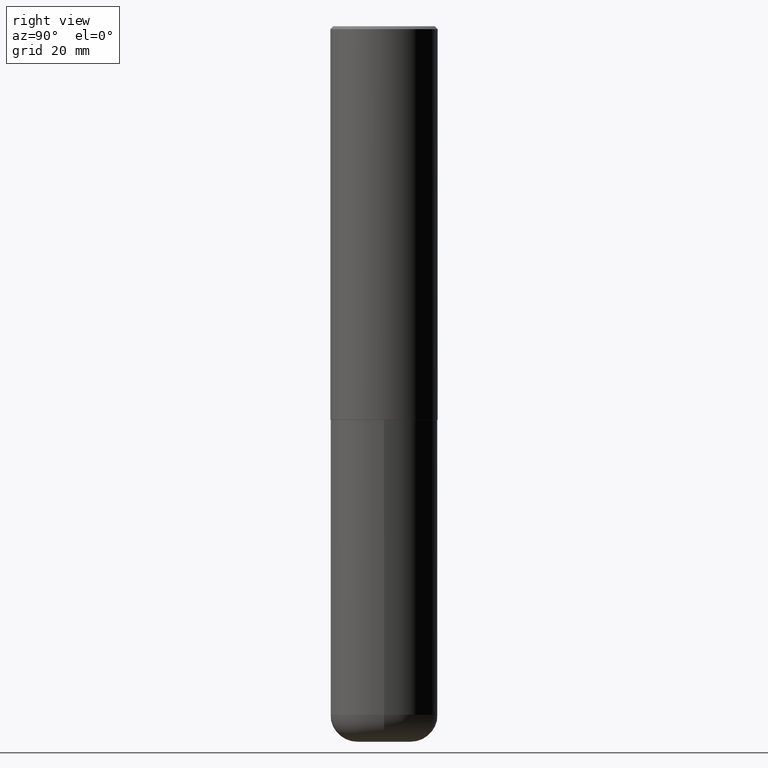
[diagram: clean part render]
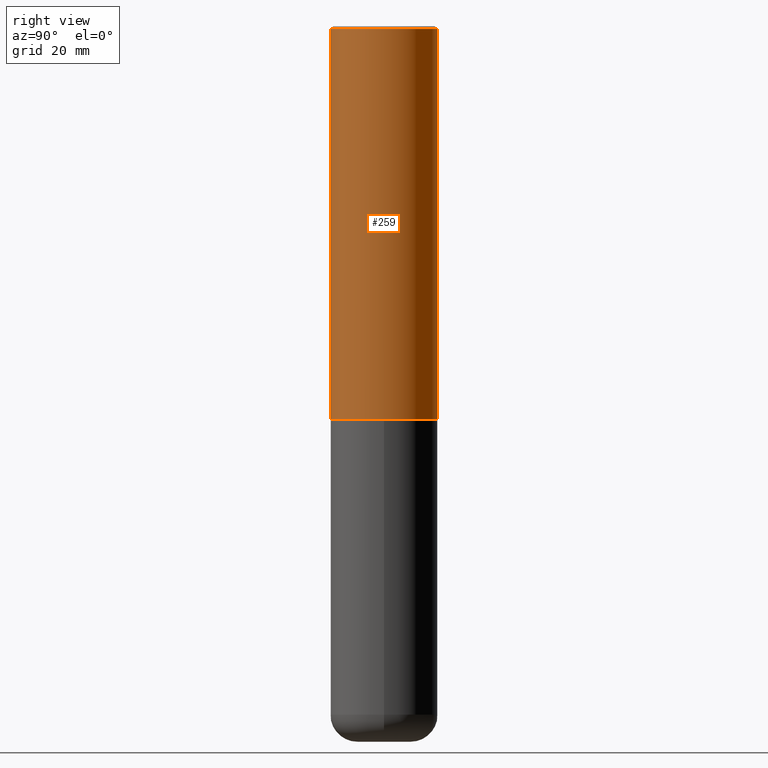
[diagram: same view with one face highlighted and labeled with its STEP entity id]
A machine part, right view. The second image highlights one B-rep face of the part: STEP entity #259.
In plain terms, the highlighted cylindrical surface (partial cylindrical patch) has radius 9.525 mm, axis along (-0, 0, 1).
Its self-contained STEP definition (entity closure, byte-faithful):
#16 = DIRECTION ( 'NONE',  ( -2.446040391741596606E-29, 3.490662795793665557E-15, 1.000000000000000000 ) ) ;
#24 = DIRECTION ( 'NONE',  ( -2.446040391741596606E-29, 3.490662795793665557E-15, 1.000000000000000000 ) ) ;
#25 = AXIS2_PLACEMENT_3D ( 'NONE', #210, #261, #216 ) ;
#39 = VERTEX_POINT ( 'NONE', #263 ) ;
#61 = AXIS2_PLACEMENT_3D ( 'NONE', #374, #16, #236 ) ;
#63 = CARTESIAN_POINT ( 'NONE',  ( -2.572686749164323547E-15, -0.3750000000000001110, -0.01999999999999877570 ) ) ;
#65 = CARTESIAN_POINT ( 'NONE',  ( 2.664535259100411196E-15, 0.3749999999999907296, -2.749000000000000998 ) ) ;
#101 = VERTEX_POINT ( 'NONE', #306 ) ;
#112 = EDGE_CURVE ( 'NONE', #295, #39, #225, .T. ) ;
#114 = ORIENTED_EDGE ( 'NONE', *, *, #329, .T. ) ;
#141 = LINE ( 'NONE', #204, #161 ) ;
#143 = LINE ( 'NONE', #147, #182 ) ;
#147 = CARTESIAN_POINT ( 'NONE',  ( -2.618611004132351594E-15, -0.3750000000000002220, 1.308998548422625521E-15 ) ) ;
#161 = VECTOR ( 'NONE', #212, 39.37007874015748143 ) ;
#182 = VECTOR ( 'NONE', #339, 39.37007874015748143 ) ;
#202 = EDGE_CURVE ( 'NONE', #101, #272, #364, .T. ) ;
#204 = CARTESIAN_POINT ( 'NONE',  ( 2.664535259100376880E-15, 0.3750000000000002220, -1.308998548422625521E-15 ) ) ;
#209 = EDGE_LOOP ( 'NONE', ( #255, #114, #352, #308 ) ) ;
#210 = CARTESIAN_POINT ( 'NONE',  ( 0.000000000000000000, 0.000000000000000000, 0.000000000000000000 ) ) ;
#212 = DIRECTION ( 'NONE',  ( -2.446040391741596606E-29, 3.490662795793665557E-15, 1.000000000000000000 ) ) ;
#216 = DIRECTION ( 'NONE',  ( -6.982962677686266711E-15, -1.000000000000000000, 3.490662795793665951E-15 ) ) ;
#219 = AXIS2_PLACEMENT_3D ( 'NONE', #316, #24, #281 ) ;
#225 = CIRCLE ( 'NONE', #61, 0.3750000000000000555 ) ;
#236 = DIRECTION ( 'NONE',  ( -6.982962677686265922E-15, -1.000000000000000000, 3.494488891895536035E-15 ) ) ;
#241 = FACE_OUTER_BOUND ( 'NONE', #209, .T. ) ;
#255 = ORIENTED_EDGE ( 'NONE', *, *, #202, .T. ) ;
#259 = ADVANCED_FACE ( 'NONE', ( #241 ), #384, .T. ) ;
#261 = DIRECTION ( 'NONE',  ( -2.446040391741596606E-29, 3.490662795793665557E-15, 1.000000000000000000 ) ) ;
#263 = CARTESIAN_POINT ( 'NONE',  ( 2.618611004132350411E-15, 0.3749999999999999445, -0.02000000000000139513 ) ) ;
#272 = VERTEX_POINT ( 'NONE', #65 ) ;
#281 = DIRECTION ( 'NONE',  ( -6.982962677686265922E-15, -1.000000000000000000, 2.913971193241877611E-15 ) ) ;
#295 = VERTEX_POINT ( 'NONE', #63 ) ;
#306 = CARTESIAN_POINT ( 'NONE',  ( -2.618611004132284935E-15, -0.3750000000000099920, -2.748999999999999222 ) ) ;
#308 = ORIENTED_EDGE ( 'NONE', *, *, #379, .F. ) ;
#316 = CARTESIAN_POINT ( 'NONE',  ( 6.724165036897648492E-29, -9.595832025636787455E-15, -2.749000000000000110 ) ) ;
#329 = EDGE_CURVE ( 'NONE', #272, #39, #141, .T. ) ;
#339 = DIRECTION ( 'NONE',  ( -2.446040391741596606E-29, 3.490662795793665557E-15, 1.000000000000000000 ) ) ;
#352 = ORIENTED_EDGE ( 'NONE', *, *, #112, .F. ) ;
#364 = CIRCLE ( 'NONE', #219, 0.3750000000000003886 ) ;
#374 = CARTESIAN_POINT ( 'NONE',  ( 4.892080783483214581E-31, -6.981325591587361238E-17, -0.02000000000000008715 ) ) ;
#379 = EDGE_CURVE ( 'NONE', #101, #295, #143, .T. ) ;
#384 = CYLINDRICAL_SURFACE ( 'NONE', #25, 0.3750000000000002220 ) ;